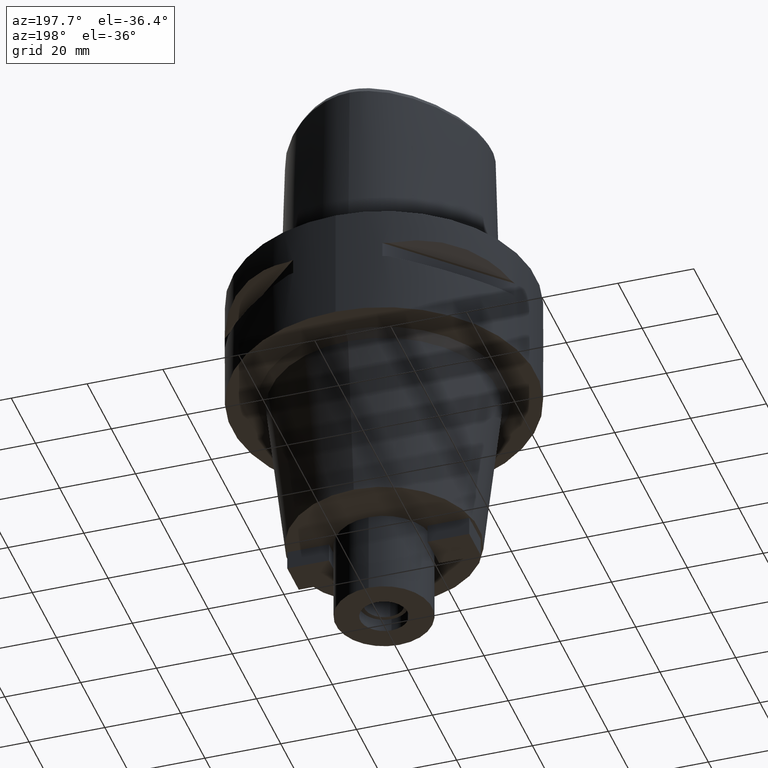
[diagram: clean part render]
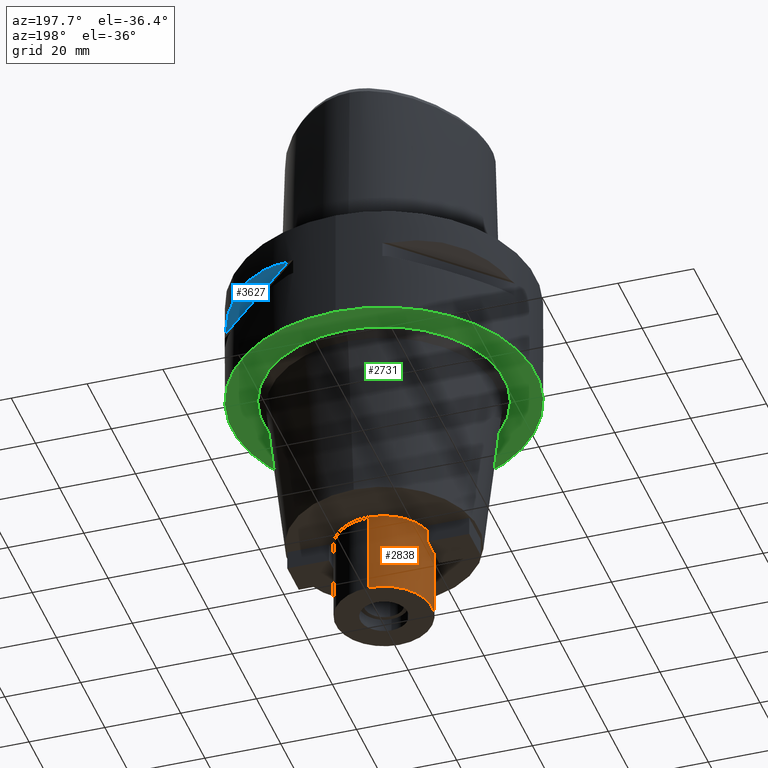
[diagram: same view with three faces highlighted in distinct colors, each labeled with its STEP entity id]
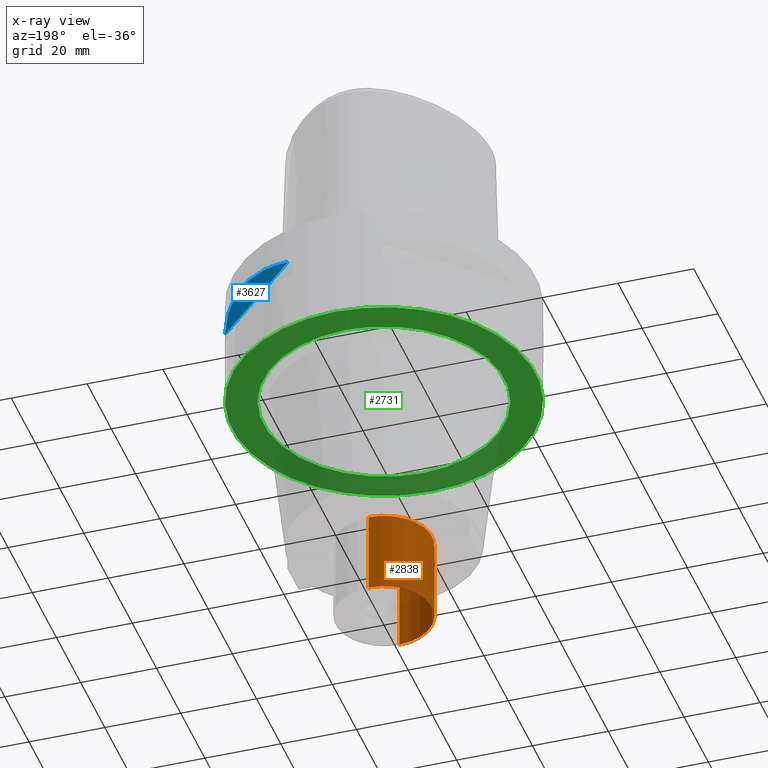
[diagram: x-ray of the same camera — body ghosted, the three highlighted faces saturated]
A machine part, auxiliary view with three faces highlighted in distinct colors.
The next image is the same camera in x-ray (body ghosted, the three faces saturated) — at least one of them is partly hidden behind the body in this view.
Their STEP definitions:

[orange] entity #2838 — the highlighted cylindrical surface (partial cylindrical patch) has radius 12.7 mm, axis along (0, 0, -1).
#602=CARTESIAN_POINT('',(0.E0,1.284042168906E-14,-7.5E1));
#603=DIRECTION('',(0.E0,0.E0,-1.E0));
#604=DIRECTION('',(0.E0,-1.E0,0.E0));
#605=AXIS2_PLACEMENT_3D('',#602,#603,#604);
#646=DIRECTION('',(0.E0,0.E0,-1.E0));
#647=VECTOR('',#646,2.2E1);
#648=CARTESIAN_POINT('',(0.E0,-1.27E1,-7.5E1));
#649=LINE('',#648,#647);
#653=DIRECTION('',(0.E0,0.E0,-1.E0));
#654=VECTOR('',#653,2.2E1);
#655=CARTESIAN_POINT('',(0.E0,1.27E1,-7.5E1));
#656=LINE('',#655,#654);
#668=CARTESIAN_POINT('',(0.E0,1.284042168906E-14,-9.7E1));
#669=DIRECTION('',(0.E0,0.E0,1.E0));
#670=DIRECTION('',(0.E0,1.E0,0.E0));
#671=AXIS2_PLACEMENT_3D('',#668,#669,#670);
#1758=CARTESIAN_POINT('',(0.E0,-1.27E1,-7.5E1));
#1759=CARTESIAN_POINT('',(0.E0,1.27E1,-7.5E1));
#1760=VERTEX_POINT('',#1758);
#1761=VERTEX_POINT('',#1759);
#1778=CARTESIAN_POINT('',(0.E0,1.27E1,-9.7E1));
#1779=VERTEX_POINT('',#1778);
#1780=CARTESIAN_POINT('',(0.E0,-1.27E1,-9.7E1));
#1781=VERTEX_POINT('',#1780);
#2824=CARTESIAN_POINT('',(0.E0,1.284042168906E-14,4.85E0));
#2825=DIRECTION('',(0.E0,0.E0,-1.E0));
#2826=DIRECTION('',(0.E0,-1.E0,0.E0));
#2827=AXIS2_PLACEMENT_3D('',#2824,#2825,#2826);
#2828=CYLINDRICAL_SURFACE('',#2827,1.27E1);
#2830=ORIENTED_EDGE('',*,*,#2829,.F.);
#2831=ORIENTED_EDGE('',*,*,#2797,.F.);
#2833=ORIENTED_EDGE('',*,*,#2832,.T.);
#2835=ORIENTED_EDGE('',*,*,#2834,.F.);
#2836=EDGE_LOOP('',(#2830,#2831,#2833,#2835));
#2837=FACE_OUTER_BOUND('',#2836,.F.);
#606=CIRCLE('',#605,1.27E1);
#672=CIRCLE('',#671,1.27E1);
#2797=EDGE_CURVE('',#1760,#1761,#606,.T.);
#2829=EDGE_CURVE('',#1761,#1779,#656,.T.);
#2832=EDGE_CURVE('',#1760,#1781,#649,.T.);
#2834=EDGE_CURVE('',#1779,#1781,#672,.T.);
#2838=ADVANCED_FACE('',(#2837),#2828,.T.);

[blue] entity #3627 — the highlighted planar face has unit normal (-0.3536, -0.3536, 0.866).
#1451=CARTESIAN_POINT('',(3.774622163927E1,1.323717311056E1,-9.950000000002E0));
#1452=CARTESIAN_POINT('',(3.668564587161E1,1.626143876435E1,-9.148326960991E0));
#1453=CARTESIAN_POINT('',(3.397359084062E1,2.171906657626E1,-8.027451566833E0));
#1454=CARTESIAN_POINT('',(2.850324251697E1,2.850324251697E1,-7.491083688204E0));
#1455=CARTESIAN_POINT('',(2.171906657626E1,3.397359084062E1,-8.027451566833E0));
#1456=CARTESIAN_POINT('',(1.626143876435E1,3.668564587161E1,-9.148326960991E0));
#1457=CARTESIAN_POINT('',(1.323717311056E1,3.774622163927E1,-9.950000000002E0));
#1478=DIRECTION('',(-7.071067811865E-1,7.071067811865E-1,0.E0));
#1479=VECTOR('',#1478,3.466102883017E1);
#1480=CARTESIAN_POINT('',(3.774622163927E1,1.323717311056E1,-9.950000000001E0));
#1481=LINE('',#1480,#1479);
#1733=VERTEX_POINT('',#1451);
#1734=VERTEX_POINT('',#1457);
#3617=CARTESIAN_POINT('',(1.166726188958E1,4.702260094891E1,-6.803847577293E0));
#3618=DIRECTION('',(-3.535533905933E-1,-3.535533905933E-1,8.660254037844E-1));
#3619=DIRECTION('',(-6.123724356958E-1,-6.123724356958E-1,-5.E-1));
#3620=AXIS2_PLACEMENT_3D('',#3617,#3618,#3619);
#3621=PLANE('',#3620);
#3622=ORIENTED_EDGE('',*,*,#2697,.T.);
#3624=ORIENTED_EDGE('',*,*,#3623,.F.);
#3625=EDGE_LOOP('',(#3622,#3624));
#3626=FACE_OUTER_BOUND('',#3625,.F.);
#1458=B_SPLINE_CURVE_WITH_KNOTS('',3,(#1451,#1452,#1453,#1454,#1455,#1456,
#1457),.UNSPECIFIED.,.F.,.F.,(4,1,1,1,4),(0.E0,2.5E-1,5.E-1,7.5E-1,1.E0),
.UNSPECIFIED.);
#2697=EDGE_CURVE('',#1733,#1734,#1458,.T.);
#3623=EDGE_CURVE('',#1733,#1734,#1481,.T.);
#3627=ADVANCED_FACE('',(#3626),#3621,.F.);

[green] entity #2731 — the highlighted planar face has unit normal (0, 0, -1).
#510=CARTESIAN_POINT('',(0.E0,1.284042168906E-14,-3.E1));
#511=DIRECTION('',(0.E0,0.E0,1.E0));
#512=DIRECTION('',(0.E0,-1.E0,0.E0));
#513=AXIS2_PLACEMENT_3D('',#510,#511,#512);
#518=CARTESIAN_POINT('',(0.E0,1.284042168906E-14,-3.E1));
#519=DIRECTION('',(0.E0,0.E0,1.E0));
#520=DIRECTION('',(0.E0,1.E0,0.E0));
#521=AXIS2_PLACEMENT_3D('',#518,#519,#520);
#526=CARTESIAN_POINT('',(0.E0,0.E0,-3.E1));
#527=DIRECTION('',(0.E0,0.E0,-1.E0));
#528=DIRECTION('',(0.E0,-1.E0,0.E0));
#529=AXIS2_PLACEMENT_3D('',#526,#527,#528);
#534=CARTESIAN_POINT('',(0.E0,0.E0,-3.E1));
#535=DIRECTION('',(0.E0,0.E0,-1.E0));
#536=DIRECTION('',(0.E0,1.E0,0.E0));
#537=AXIS2_PLACEMENT_3D('',#534,#535,#536);
#1690=CARTESIAN_POINT('',(0.E0,4.E1,-3.E1));
#1691=VERTEX_POINT('',#1690);
#1692=CARTESIAN_POINT('',(0.E0,-4.E1,-3.E1));
#1693=VERTEX_POINT('',#1692);
#1746=CARTESIAN_POINT('',(0.E0,-3.177763209755E1,-3.E1));
#1747=CARTESIAN_POINT('',(0.E0,3.177763209755E1,-3.E1));
#1748=VERTEX_POINT('',#1746);
#1749=VERTEX_POINT('',#1747);
#2716=CARTESIAN_POINT('',(0.E0,0.E0,-3.E1));
#2717=DIRECTION('',(0.E0,0.E0,-1.E0));
#2718=DIRECTION('',(0.E0,-1.E0,0.E0));
#2719=AXIS2_PLACEMENT_3D('',#2716,#2717,#2718);
#2720=PLANE('',#2719);
#2721=ORIENTED_EDGE('',*,*,#2673,.T.);
#2722=ORIENTED_EDGE('',*,*,#2626,.T.);
#2723=EDGE_LOOP('',(#2721,#2722));
#2724=FACE_OUTER_BOUND('',#2723,.F.);
#2726=ORIENTED_EDGE('',*,*,#2725,.T.);
#2728=ORIENTED_EDGE('',*,*,#2727,.T.);
#2729=EDGE_LOOP('',(#2726,#2728));
#2730=FACE_BOUND('',#2729,.F.);
#514=CIRCLE('',#513,4.E1);
#522=CIRCLE('',#521,4.E1);
#530=CIRCLE('',#529,3.177763209755E1);
#538=CIRCLE('',#537,3.177763209755E1);
#2626=EDGE_CURVE('',#1691,#1693,#522,.T.);
#2673=EDGE_CURVE('',#1693,#1691,#514,.T.);
#2725=EDGE_CURVE('',#1748,#1749,#530,.T.);
#2727=EDGE_CURVE('',#1749,#1748,#538,.T.);
#2731=ADVANCED_FACE('',(#2724,#2730),#2720,.T.);